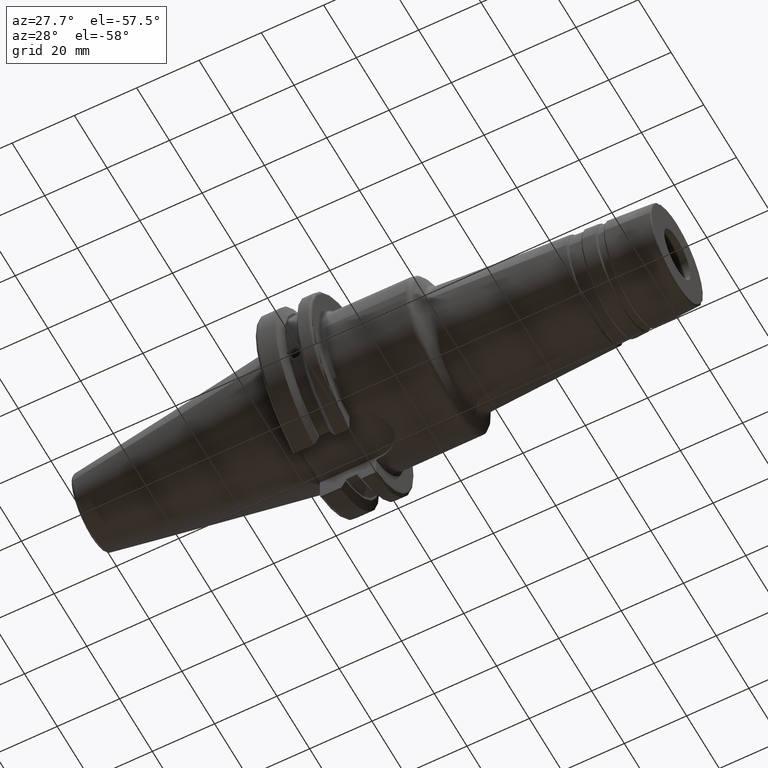
[diagram: clean part render]
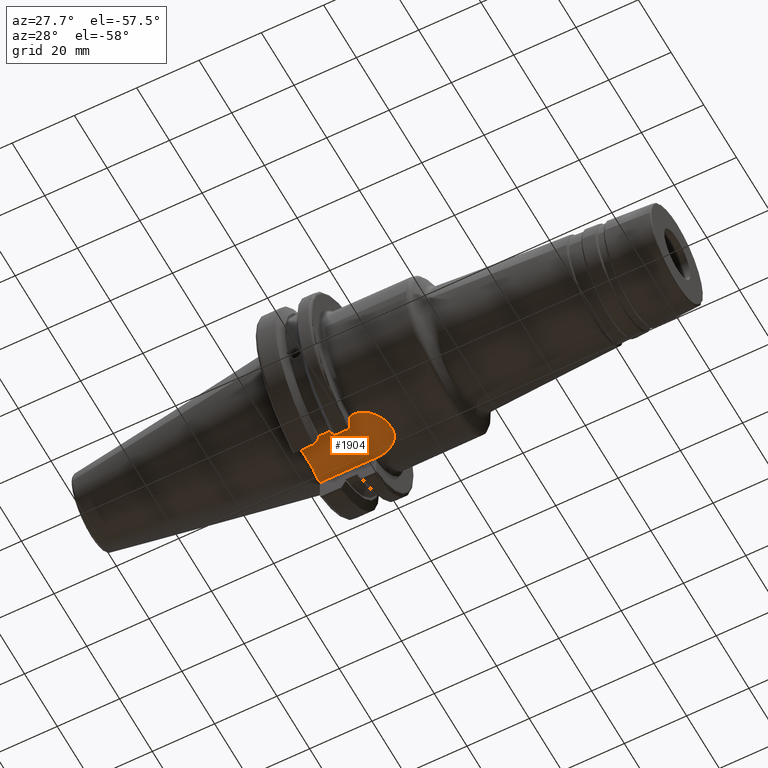
[diagram: same view with one face highlighted and labeled with its STEP entity id]
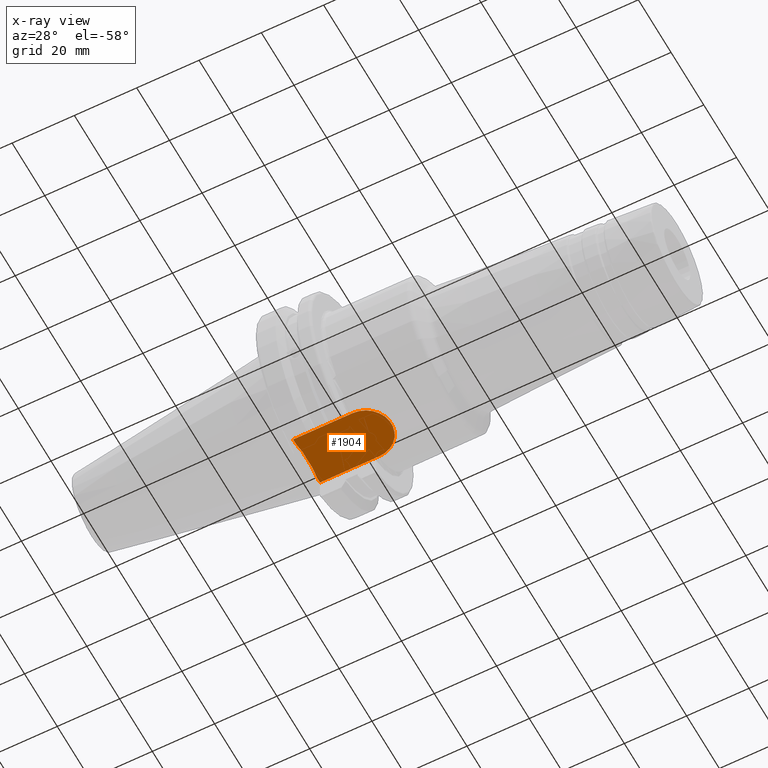
[diagram: x-ray of the same camera — body ghosted, the highlighted face saturated]
A machine part, auxiliary view. The second image highlights one B-rep face of the part: STEP entity #1904.
The next image is the same camera in x-ray: the body ghosted, the highlighted face saturated — about 0% of this face is hidden behind the body in this view.
In plain terms, the highlighted planar face has unit normal (0, 0, 1).
Its self-contained STEP definition (entity closure, byte-faithful):
#31=(
BOUNDED_CURVE()
B_SPLINE_CURVE(2,(#3723,#3724,#3725),.UNSPECIFIED.,.F.,.F.)
B_SPLINE_CURVE_WITH_KNOTS((3,3),(0.,0.339841691449478),.UNSPECIFIED.)
CURVE()
GEOMETRIC_REPRESENTATION_ITEM()
RATIONAL_B_SPLINE_CURVE((1.,1.00266518417082,1.))
REPRESENTATION_ITEM('')
);
#32=(
BOUNDED_CURVE()
B_SPLINE_CURVE(2,(#3728,#3729,#3730),.UNSPECIFIED.,.F.,.F.)
B_SPLINE_CURVE_WITH_KNOTS((3,3),(0.,0.339841691449478),.UNSPECIFIED.)
CURVE()
GEOMETRIC_REPRESENTATION_ITEM()
RATIONAL_B_SPLINE_CURVE((1.,1.00266518417082,1.))
REPRESENTATION_ITEM('')
);
#159=PLANE('',#2163);
#237=LINE('',#3599,#330);
#240=LINE('',#3628,#333);
#241=LINE('',#3631,#334);
#250=LINE('',#3697,#343);
#255=LINE('',#3727,#348);
#330=VECTOR('',#2637,10.);
#333=VECTOR('',#2650,10.);
#334=VECTOR('',#2653,10.);
#343=VECTOR('',#2700,10.);
#348=VECTOR('',#2723,10.);
#463=FACE_OUTER_BOUND('',#581,.T.);
#581=EDGE_LOOP('',(#1708,#1709,#1710,#1711,#1712,#1713,#1714,#1715));
#663=CIRCLE('',#2032,8.19);
#784=VERTEX_POINT('',#2997);
#785=VERTEX_POINT('',#2999);
#893=VERTEX_POINT('',#3597);
#897=VERTEX_POINT('',#3625);
#898=VERTEX_POINT('',#3627);
#899=VERTEX_POINT('',#3629);
#915=VERTEX_POINT('',#3722);
#916=VERTEX_POINT('',#3726);
#1002=EDGE_CURVE('',#785,#784,#663,.T.);
#1152=EDGE_CURVE('',#784,#893,#237,.T.);
#1160=EDGE_CURVE('',#897,#898,#240,.T.);
#1162=EDGE_CURVE('',#899,#893,#241,.T.);
#1183=EDGE_CURVE('',#785,#897,#250,.T.);
#1193=EDGE_CURVE('',#915,#899,#31,.T.);
#1194=EDGE_CURVE('',#916,#915,#255,.T.);
#1195=EDGE_CURVE('',#898,#916,#32,.T.);
#1708=ORIENTED_EDGE('',*,*,#1152,.T.);
#1709=ORIENTED_EDGE('',*,*,#1162,.F.);
#1710=ORIENTED_EDGE('',*,*,#1193,.F.);
#1711=ORIENTED_EDGE('',*,*,#1194,.F.);
#1712=ORIENTED_EDGE('',*,*,#1195,.F.);
#1713=ORIENTED_EDGE('',*,*,#1160,.F.);
#1714=ORIENTED_EDGE('',*,*,#1183,.F.);
#1715=ORIENTED_EDGE('',*,*,#1002,.T.);
#1904=ADVANCED_FACE('',(#463),#159,.F.);
#2032=AXIS2_PLACEMENT_3D('',#3000,#2386,#2387);
#2163=AXIS2_PLACEMENT_3D('',#3721,#2721,#2722);
#2386=DIRECTION('center_axis',(0.,0.,-1.));
#2387=DIRECTION('ref_axis',(5.42233467460393E-16,1.,0.));
#2637=DIRECTION('',(-1.,0.,0.));
#2650=DIRECTION('',(0.,-1.,0.));
#2653=DIRECTION('',(0.,-1.,0.));
#2700=DIRECTION('',(-1.,-1.16558847729675E-16,0.));
#2721=DIRECTION('center_axis',(0.,0.,1.));
#2722=DIRECTION('ref_axis',(1.,0.,0.));
#2723=DIRECTION('',(0.,-1.,0.));
#2997=CARTESIAN_POINT('',(20.05,-8.19,-22.6));
#2999=CARTESIAN_POINT('',(20.05,8.19,-22.6));
#3000=CARTESIAN_POINT('Origin',(20.05,0.,-22.6));
#3597=CARTESIAN_POINT('',(1.,-8.19,-22.6));
#3599=CARTESIAN_POINT('',(20.05,-8.19,-22.6));
#3625=CARTESIAN_POINT('',(0.999999999999998,8.19,-22.6));
#3627=CARTESIAN_POINT('',(0.999999999999997,6.4412731660752,-22.6));
#3628=CARTESIAN_POINT('',(1.,15.875,-22.6));
#3629=CARTESIAN_POINT('',(1.,-6.44127316607517,-22.6));
#3631=CARTESIAN_POINT('',(1.,15.875,-22.6));
#3697=CARTESIAN_POINT('',(20.05,8.19,-22.6));
#3721=CARTESIAN_POINT('Origin',(14.62,-5.55111512312578E-16,-22.6));
#3722=CARTESIAN_POINT('',(1.4,-3.06715581894774,-22.6));
#3723=CARTESIAN_POINT('Ctrl Pts',(1.4,-3.06715581894779,-22.6));
#3724=CARTESIAN_POINT('Ctrl Pts',(1.27097107950098,-4.72897372977579,-22.6));
#3725=CARTESIAN_POINT('Ctrl Pts',(0.999999999999999,-6.44127316607519,-22.6));
#3726=CARTESIAN_POINT('',(1.4,3.06715581894774,-22.6));
#3727=CARTESIAN_POINT('',(1.4,11.4035898384862,-22.6));
#3728=CARTESIAN_POINT('Ctrl Pts',(0.999999999999999,6.44127316607519,-22.6));
#3729=CARTESIAN_POINT('Ctrl Pts',(1.27097107950098,4.72897372977579,-22.6));
#3730=CARTESIAN_POINT('Ctrl Pts',(1.4,3.06715581894779,-22.6));